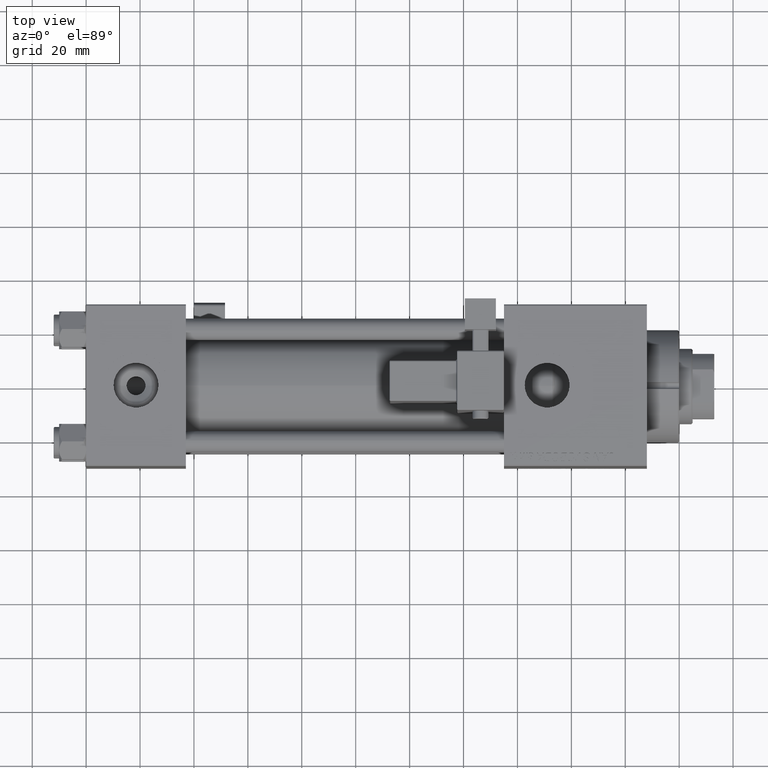
[diagram: clean part render]
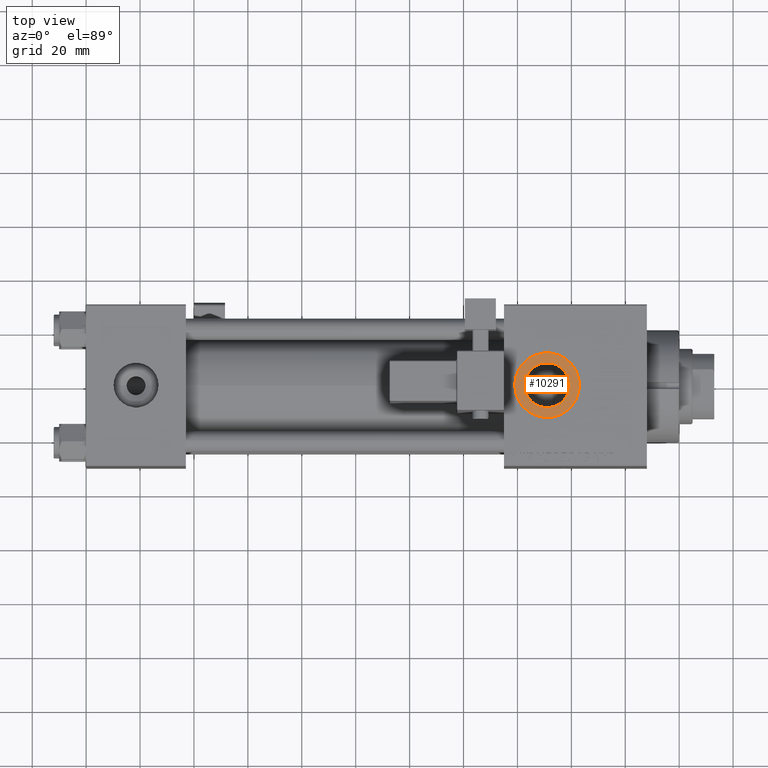
[diagram: same view with one face highlighted and labeled with its STEP entity id]
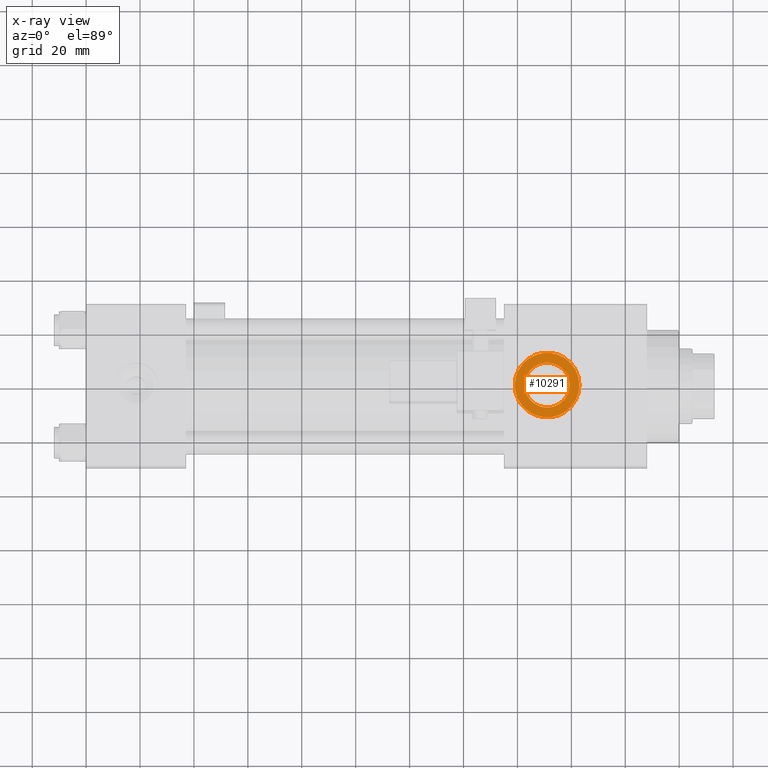
[diagram: x-ray of the same camera — body ghosted, the highlighted face saturated]
A machine part, top view. The second image highlights one B-rep face of the part: STEP entity #10291.
The next image is the same camera in x-ray: the body ghosted, the highlighted face saturated — about 0% of this face is hidden behind the body in this view.
In plain terms, the highlighted planar face has unit normal (0, 0, 1).
Its self-contained STEP definition (entity closure, byte-faithful):
#1296 = VERTEX_POINT ( 'NONE', #15037 ) ;
#1908 = DIRECTION ( 'NONE',  ( 0.000000000000000000, 0.000000000000000000, 1.000000000000000000 ) ) ;
#3017 = CARTESIAN_POINT ( 'NONE',  ( 170.9999999999999716, -3.469446951953613794E-15, 29.79999999999999716 ) ) ;
#3121 = CARTESIAN_POINT ( 'NONE',  ( 170.9999999999999716, -3.469446951953613794E-15, 29.79999999999999716 ) ) ;
#3454 = FACE_BOUND ( 'NONE', #31560, .T. ) ;
#4272 = VERTEX_POINT ( 'NONE', #37144 ) ;
#4983 = AXIS2_PLACEMENT_3D ( 'NONE', #23570, #46414, #9424 ) ;
#6058 = AXIS2_PLACEMENT_3D ( 'NONE', #3121, #49339, #7469 ) ;
#7231 = EDGE_CURVE ( 'NONE', #4272, #23525, #8373, .T. ) ;
#7469 = DIRECTION ( 'NONE',  ( 1.000000000000000000, 0.000000000000000000, 0.000000000000000000 ) ) ;
#8190 = ORIENTED_EDGE ( 'NONE', *, *, #44438, .T. ) ;
#8373 = CIRCLE ( 'NONE', #14386, 8.330000000000003624 ) ;
#8770 = EDGE_CURVE ( 'NONE', #23525, #4272, #13624, .T. ) ;
#9424 = DIRECTION ( 'NONE',  ( 1.000000000000000000, 0.000000000000000000, -0.000000000000000000 ) ) ;
#10238 = CARTESIAN_POINT ( 'NONE',  ( 158.9999999999999716, -1.999870792976789650E-15, 29.79999999999999716 ) ) ;
#10260 = DIRECTION ( 'NONE',  ( -0.000000000000000000, -0.000000000000000000, -1.000000000000000000 ) ) ;
#10291 = ADVANCED_FACE ( 'NONE', ( #3454, #20027 ), #49672, .T. ) ;
#10634 = DIRECTION ( 'NONE',  ( 1.000000000000000000, 0.000000000000000000, 0.000000000000000000 ) ) ;
#13624 = CIRCLE ( 'NONE', #27516, 8.330000000000003624 ) ;
#14386 = AXIS2_PLACEMENT_3D ( 'NONE', #3017, #19857, #10634 ) ;
#15037 = CARTESIAN_POINT ( 'NONE',  ( 183.0000000000000000, -3.469446951953613794E-15, 29.79999999999999716 ) ) ;
#15372 = EDGE_CURVE ( 'NONE', #41760, #1296, #42515, .T. ) ;
#16475 = CIRCLE ( 'NONE', #20826, 12.00000000000001066 ) ;
#19857 = DIRECTION ( 'NONE',  ( -0.000000000000000000, -0.000000000000000000, -1.000000000000000000 ) ) ;
#20027 = FACE_OUTER_BOUND ( 'NONE', #48912, .T. ) ;
#20826 = AXIS2_PLACEMENT_3D ( 'NONE', #30200, #1908, #22038 ) ;
#22038 = DIRECTION ( 'NONE',  ( 1.000000000000000000, 0.000000000000000000, 0.000000000000000000 ) ) ;
#22409 = ORIENTED_EDGE ( 'NONE', *, *, #7231, .T. ) ;
#23525 = VERTEX_POINT ( 'NONE', #44814 ) ;
#23555 = DIRECTION ( 'NONE',  ( 1.000000000000000000, 0.000000000000000000, 0.000000000000000000 ) ) ;
#23570 = CARTESIAN_POINT ( 'NONE',  ( 170.9999999999999716, -3.469446951953613794E-15, 29.79999999999999716 ) ) ;
#27516 = AXIS2_PLACEMENT_3D ( 'NONE', #35807, #10260, #23555 ) ;
#30200 = CARTESIAN_POINT ( 'NONE',  ( 170.9999999999999716, -3.469446951953613794E-15, 29.79999999999999716 ) ) ;
#31560 = EDGE_LOOP ( 'NONE', ( #22409, #35397 ) ) ;
#35397 = ORIENTED_EDGE ( 'NONE', *, *, #8770, .T. ) ;
#35807 = CARTESIAN_POINT ( 'NONE',  ( 170.9999999999999716, -3.469446951953613794E-15, 29.79999999999999716 ) ) ;
#37144 = CARTESIAN_POINT ( 'NONE',  ( 162.6699999999999875, -3.469446951953613794E-15, 29.79999999999999716 ) ) ;
#41760 = VERTEX_POINT ( 'NONE', #10238 ) ;
#42515 = CIRCLE ( 'NONE', #6058, 12.00000000000001066 ) ;
#44438 = EDGE_CURVE ( 'NONE', #1296, #41760, #16475, .T. ) ;
#44814 = CARTESIAN_POINT ( 'NONE',  ( 179.3299999999999841, -2.449316168263869821E-15, 29.79999999999999716 ) ) ;
#46414 = DIRECTION ( 'NONE',  ( 0.000000000000000000, 0.000000000000000000, 1.000000000000000000 ) ) ;
#48912 = EDGE_LOOP ( 'NONE', ( #8190, #49185 ) ) ;
#49185 = ORIENTED_EDGE ( 'NONE', *, *, #15372, .T. ) ;
#49339 = DIRECTION ( 'NONE',  ( 0.000000000000000000, 0.000000000000000000, 1.000000000000000000 ) ) ;
#49672 = PLANE ( 'NONE',  #4983 ) ;